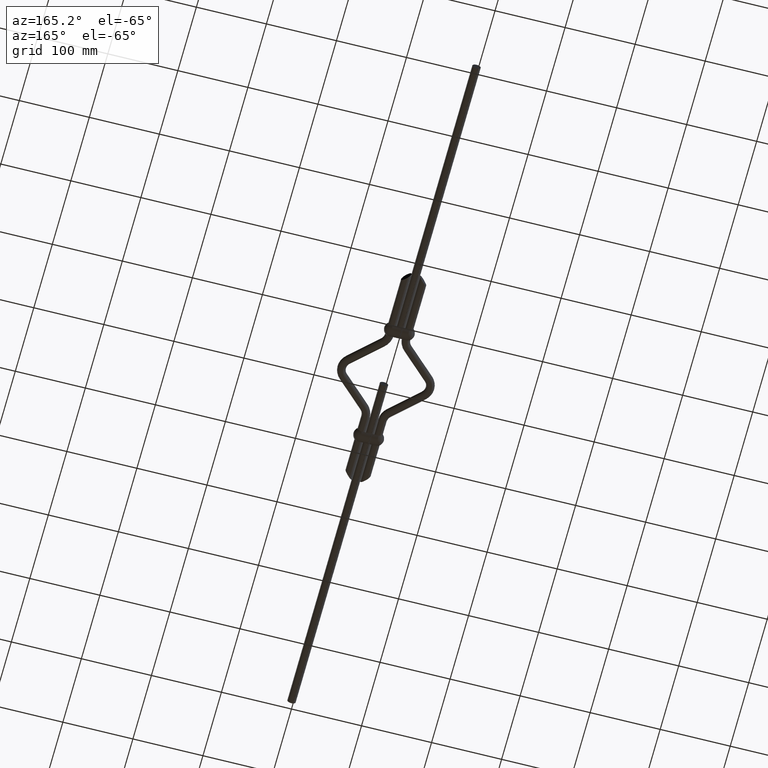
[diagram: clean part render]
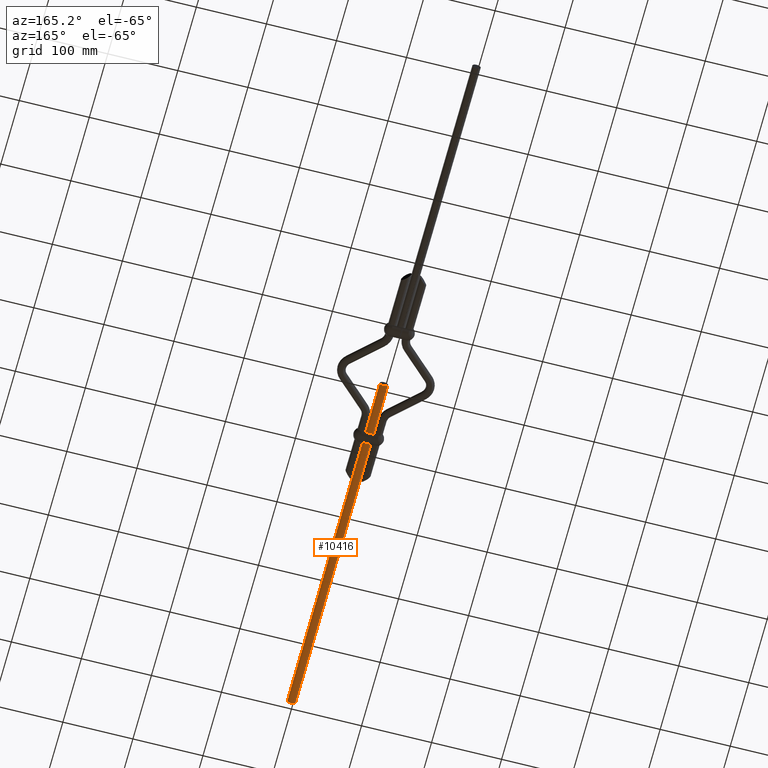
[diagram: same view with one face highlighted and labeled with its STEP entity id]
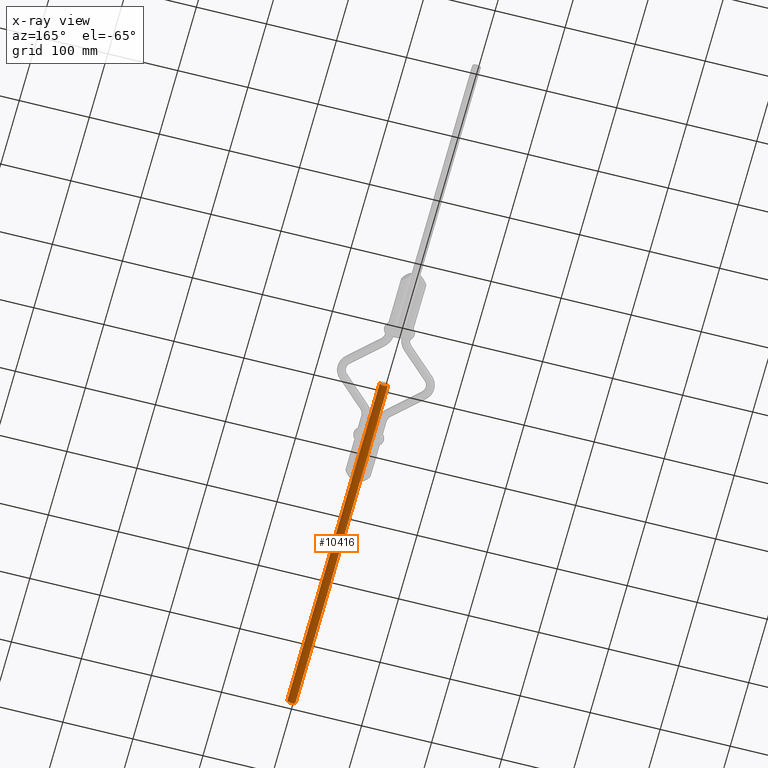
[diagram: x-ray of the same camera — body ghosted, the highlighted face saturated]
A machine part, auxiliary view. The second image highlights one B-rep face of the part: STEP entity #10416.
The next image is the same camera in x-ray: the body ghosted, the highlighted face saturated — about 0% of this face is hidden behind the body in this view.
In plain terms, the highlighted cylindrical surface (edge-blend (fillet) strip) has radius 6 mm, axis along (0, -1, -0).
Its self-contained STEP definition (entity closure, byte-faithful):
#255 = CARTESIAN_POINT ( 'NONE',  ( -5.999999999999965400, -2.081668171172157100E-017, 7.347880794884079300E-016 ) ) ;
#825 = DIRECTION ( 'NONE',  ( 1.000000000000000000, 0.0000000000000000000, 0.0000000000000000000 ) ) ;
#1484 = VECTOR ( 'NONE', #6355, 1000.000000000000000 ) ;
#1920 = CIRCLE ( 'NONE', #13080, 5.999999999999938700 ) ;
#2038 = EDGE_CURVE ( 'NONE', #11349, #15329, #1920, .T. ) ;
#2080 = CARTESIAN_POINT ( 'NONE',  ( 0.0000000000000000000, 500.0000000000000000, 0.0000000000000000000 ) ) ;
#2081 = LINE ( 'NONE', #9263, #6575 ) ;
#2736 = CARTESIAN_POINT ( 'NONE',  ( 1.734723475976807100E-015, -7.490303561645979200E-015, 0.0000000000000000000 ) ) ;
#4037 = VERTEX_POINT ( 'NONE', #5345 ) ;
#4412 = CYLINDRICAL_SURFACE ( 'NONE', #11146, 5.999999999999967100 ) ;
#4531 = CARTESIAN_POINT ( 'NONE',  ( -5.999999999999993800, -7.511120243357699300E-015, 7.347880794884113800E-016 ) ) ;
#5231 = DIRECTION ( 'NONE',  ( 3.469446951953614200E-018, -1.000000000000000000, -0.0000000000000000000 ) ) ;
#5345 = CARTESIAN_POINT ( 'NONE',  ( 5.999999999999998200, -7.469486879934257500E-015, 0.0000000000000000000 ) ) ;
#6355 = DIRECTION ( 'NONE',  ( 3.469446951953614200E-018, -1.000000000000000000, -0.0000000000000000000 ) ) ;
#6575 = VECTOR ( 'NONE', #15758, 1000.000000000000000 ) ;
#6587 = CIRCLE ( 'NONE', #8008, 5.999999999999996400 ) ;
#7160 = EDGE_CURVE ( 'NONE', #15862, #4037, #6587, .T. ) ;
#8008 = AXIS2_PLACEMENT_3D ( 'NONE', #2736, #5231, #11375 ) ;
#8222 = DIRECTION ( 'NONE',  ( 3.469446951953614200E-018, -1.000000000000000000, -0.0000000000000000000 ) ) ;
#8799 = CARTESIAN_POINT ( 'NONE',  ( 5.999999999999938700, 500.0000000000000000, 0.0000000000000000000 ) ) ;
#9142 = EDGE_CURVE ( 'NONE', #15329, #4037, #2081, .T. ) ;
#9263 = CARTESIAN_POINT ( 'NONE',  ( 5.999999999999968900, 2.081668171172157100E-017, 0.0000000000000000000 ) ) ;
#9280 = EDGE_CURVE ( 'NONE', #11349, #15862, #10642, .T. ) ;
#10151 = CARTESIAN_POINT ( 'NONE',  ( -5.999999999999938700, 500.0000000000000000, 7.347880794884062500E-016 ) ) ;
#10416 = ADVANCED_FACE ( 'NONE', ( #11221 ), #4412, .T. ) ;
#10642 = LINE ( 'NONE', #255, #1484 ) ;
#11027 = ORIENTED_EDGE ( 'NONE', *, *, #9280, .F. ) ;
#11146 = AXIS2_PLACEMENT_3D ( 'NONE', #12622, #12675, #13799 ) ;
#11221 = FACE_OUTER_BOUND ( 'NONE', #13900, .T. ) ;
#11349 = VERTEX_POINT ( 'NONE', #10151 ) ;
#11375 = DIRECTION ( 'NONE',  ( 1.000000000000000000, 3.469446951953490900E-018, 0.0000000000000000000 ) ) ;
#11969 = ORIENTED_EDGE ( 'NONE', *, *, #7160, .F. ) ;
#12622 = CARTESIAN_POINT ( 'NONE',  ( 1.734723475976807100E-015, 0.0000000000000000000, 0.0000000000000000000 ) ) ;
#12675 = DIRECTION ( 'NONE',  ( 3.469446951953614200E-018, -1.000000000000000000, -0.0000000000000000000 ) ) ;
#13080 = AXIS2_PLACEMENT_3D ( 'NONE', #2080, #8222, #825 ) ;
#13170 = ORIENTED_EDGE ( 'NONE', *, *, #2038, .T. ) ;
#13799 = DIRECTION ( 'NONE',  ( 1.000000000000000000, 3.469446951953614200E-018, 0.0000000000000000000 ) ) ;
#13900 = EDGE_LOOP ( 'NONE', ( #11027, #13170, #14805, #11969 ) ) ;
#14805 = ORIENTED_EDGE ( 'NONE', *, *, #9142, .T. ) ;
#15329 = VERTEX_POINT ( 'NONE', #8799 ) ;
#15758 = DIRECTION ( 'NONE',  ( 3.469446951953614200E-018, -1.000000000000000000, -0.0000000000000000000 ) ) ;
#15862 = VERTEX_POINT ( 'NONE', #4531 ) ;